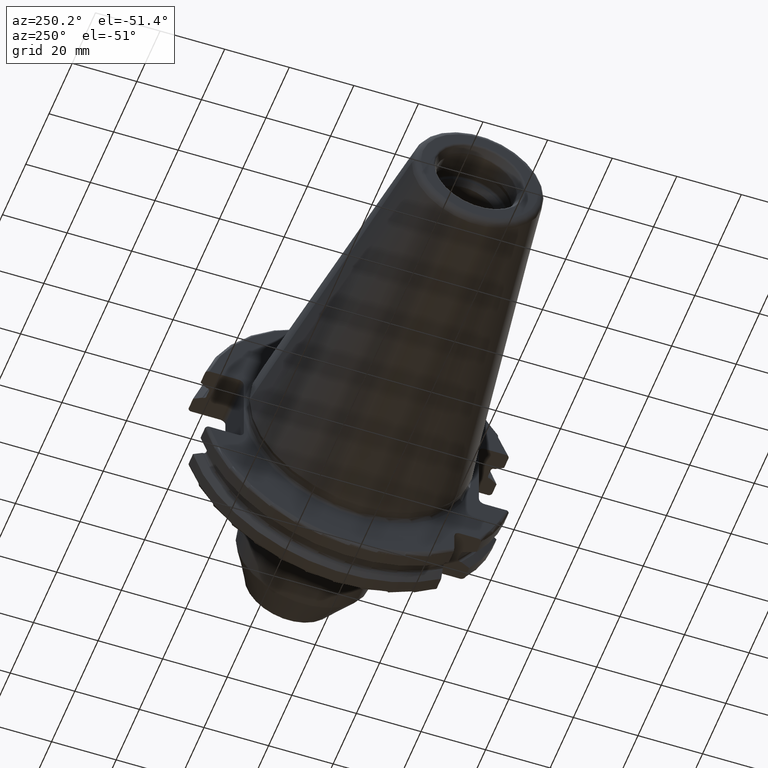
[diagram: clean part render]
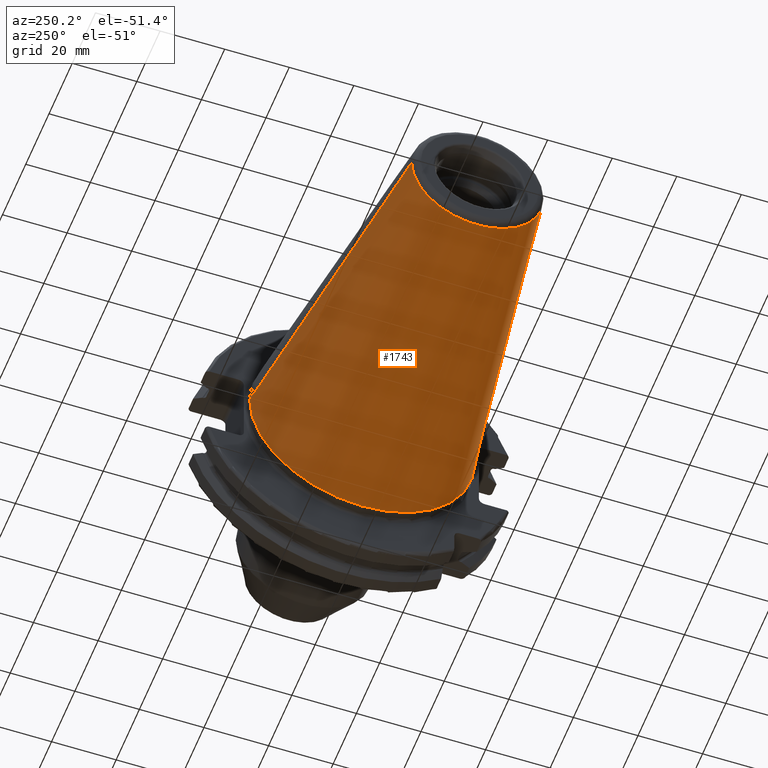
[diagram: same view with one face highlighted and labeled with its STEP entity id]
A machine part, auxiliary view. The second image highlights one B-rep face of the part: STEP entity #1743.
In plain terms, the highlighted conical surface has half-angle 8.298 deg.
Its self-contained STEP definition (entity closure, byte-faithful):
#32=CARTESIAN_POINT('',(-9.967471700563E1,0.E0,0.E0));
#33=DIRECTION('',(-1.E0,0.E0,0.E0));
#34=DIRECTION('',(0.E0,1.E0,0.E0));
#35=AXIS2_PLACEMENT_3D('',#32,#33,#34);
#47=DIRECTION('',(-9.895312636440E-1,-1.443186691705E-1,0.E0));
#48=VECTOR('',#47,1.002343617797E2);
#49=CARTESIAN_POINT('',(-4.896823332305E-1,3.485358204157E1,0.E0));
#50=LINE('',#49,#48);
#51=DIRECTION('',(-9.895312636440E-1,1.443186691705E-1,0.E0));
#52=VECTOR('',#51,1.002343617797E2);
#53=CARTESIAN_POINT('',(-4.896823332305E-1,-3.485358204157E1,0.E0));
#54=LINE('',#53,#52);
#55=CARTESIAN_POINT('',(-4.896823332305E-1,0.E0,0.E0));
#56=DIRECTION('',(-1.E0,0.E0,0.E0));
#57=DIRECTION('',(0.E0,1.E0,0.E0));
#58=AXIS2_PLACEMENT_3D('',#55,#56,#57);
#1398=CARTESIAN_POINT('',(-9.967471700563E1,2.038789234437E1,0.E0));
#1400=VERTEX_POINT('',#1398);
#1402=CARTESIAN_POINT('',(-9.967471700563E1,-2.038789234437E1,0.E0));
#1404=VERTEX_POINT('',#1402);
#1466=CARTESIAN_POINT('',(-4.896823332305E-1,3.485358204157E1,0.E0));
#1467=VERTEX_POINT('',#1466);
#1468=CARTESIAN_POINT('',(-4.896823332305E-1,-3.485358204157E1,0.E0));
#1469=VERTEX_POINT('',#1468);
#1731=CARTESIAN_POINT('',(-5.008219966943E1,0.E0,0.E0));
#1732=DIRECTION('',(1.E0,0.E0,0.E0));
#1733=DIRECTION('',(0.E0,-1.E0,0.E0));
#1734=AXIS2_PLACEMENT_3D('',#1731,#1732,#1733);
#1735=CONICAL_SURFACE('',#1734,2.762073719297E1,8.297826828206E0);
#1736=ORIENTED_EDGE('',*,*,#1721,.T.);
#1737=ORIENTED_EDGE('',*,*,#1698,.T.);
#1738=ORIENTED_EDGE('',*,*,#1725,.F.);
#1740=ORIENTED_EDGE('',*,*,#1739,.F.);
#1741=EDGE_LOOP('',(#1736,#1737,#1738,#1740));
#1742=FACE_OUTER_BOUND('',#1741,.F.);
#1743=ADVANCED_FACE('',(#1742),#1735,.T.);
#36=CIRCLE('',#35,2.038789234437E1);
#59=CIRCLE('',#58,3.485358204157E1);
#1698=EDGE_CURVE('',#1400,#1404,#36,.T.);
#1721=EDGE_CURVE('',#1467,#1400,#50,.T.);
#1725=EDGE_CURVE('',#1469,#1404,#54,.T.);
#1739=EDGE_CURVE('',#1467,#1469,#59,.T.);